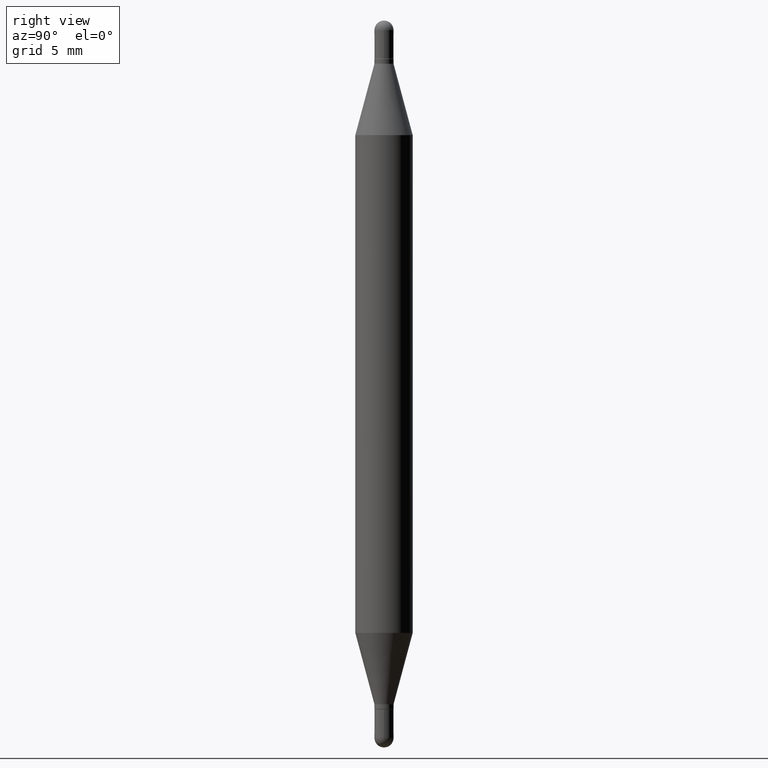
[diagram: clean part render]
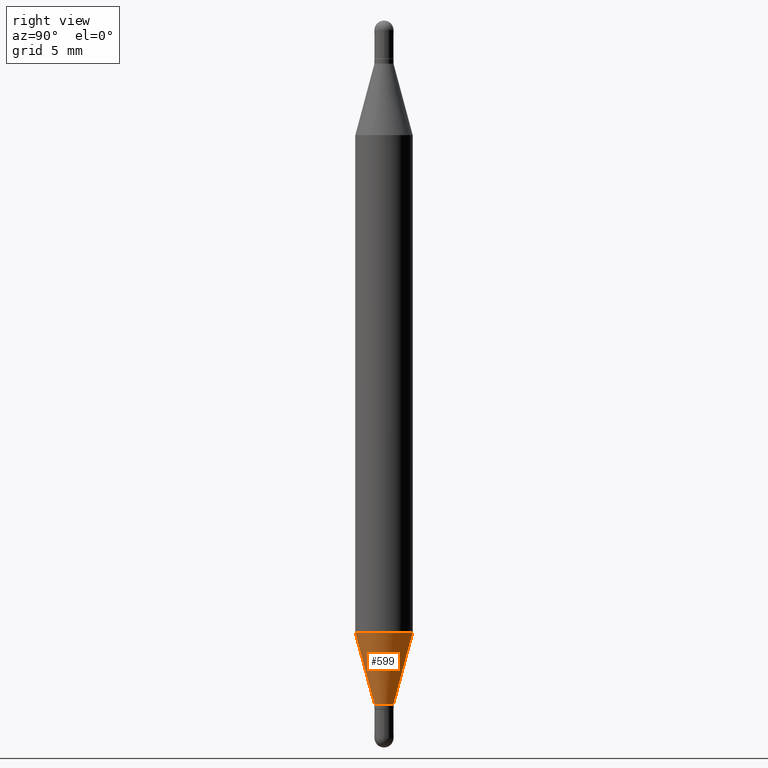
[diagram: same view with one face highlighted and labeled with its STEP entity id]
A machine part, right view. The second image highlights one B-rep face of the part: STEP entity #599.
In plain terms, the highlighted conical surface has half-angle 15 deg.
Its self-contained STEP definition (entity closure, byte-faithful):
#11 = FACE_OUTER_BOUND ( 'NONE', #234, .T. ) ;
#34 = CARTESIAN_POINT ( 'NONE',  ( -1.375643647503834691E-16, -0.01970000000000468945, -1.407099999999999795 ) ) ;
#193 = CARTESIAN_POINT ( 'NONE',  ( -1.375643647503834691E-16, -0.01970000000000468945, -1.407099999999999795 ) ) ;
#196 = CARTESIAN_POINT ( 'NONE',  ( 4.051124067684272586E-16, 0.05904999999999561294, -1.260243800722164353 ) ) ;
#234 = EDGE_LOOP ( 'NONE', ( #318, #975, #727, #417 ) ) ;
#245 = VECTOR ( 'NONE', #346, 39.37007874015748143 ) ;
#258 = CARTESIAN_POINT ( 'NONE',  ( 1.399769189447723916E-16, 0.01969999999999484663, -1.407099999999999795 ) ) ;
#267 = CIRCLE ( 'NONE', #898, 0.01969999999999976631 ) ;
#268 = CARTESIAN_POINT ( 'NONE',  ( 1.399769189447726381E-16, 0.01969999999999484663, -1.407099999999999795 ) ) ;
#318 = ORIENTED_EDGE ( 'NONE', *, *, #424, .T. ) ;
#338 = DIRECTION ( 'NONE',  ( -6.982962677686265922E-15, -1.000000000000000000, 0.000000000000000000 ) ) ;
#343 = LINE ( 'NONE', #193, #413 ) ;
#346 = DIRECTION ( 'NONE',  ( 1.839019923739600710E-15, 0.2588190451025250138, 0.9659258262890670910 ) ) ;
#413 = VECTOR ( 'NONE', #943, 39.37007874015748143 ) ;
#417 = ORIENTED_EDGE ( 'NONE', *, *, #513, .F. ) ;
#424 = EDGE_CURVE ( 'NONE', #646, #544, #267, .T. ) ;
#513 = EDGE_CURVE ( 'NONE', #646, #1064, #343, .T. ) ;
#514 = DIRECTION ( 'NONE',  ( -6.982962677686265922E-15, -1.000000000000000000, 4.626330217890367758E-15 ) ) ;
#522 = LINE ( 'NONE', #258, #245 ) ;
#544 = VERTEX_POINT ( 'NONE', #268 ) ;
#555 = EDGE_CURVE ( 'NONE', #1064, #1034, #557, .T. ) ;
#557 = CIRCLE ( 'NONE', #718, 0.05905000000000002608 ) ;
#599 = ADVANCED_FACE ( 'NONE', ( #11 ), #940, .T. ) ;
#646 = VERTEX_POINT ( 'NONE', #34 ) ;
#718 = AXIS2_PLACEMENT_3D ( 'NONE', #855, #777, #514 ) ;
#727 = ORIENTED_EDGE ( 'NONE', *, *, #555, .F. ) ;
#741 = DIRECTION ( 'NONE',  ( -2.440243022076049801E-29, 3.498964959120518163E-15, 1.000000000000000000 ) ) ;
#757 = CARTESIAN_POINT ( 'NONE',  ( 3.433665956363208741E-29, -4.923393593978480211E-15, -1.407099999999999795 ) ) ;
#777 = DIRECTION ( 'NONE',  ( -2.440243022076049801E-29, 3.498964959120518163E-15, 1.000000000000000000 ) ) ;
#801 = CARTESIAN_POINT ( 'NONE',  ( -4.123439461173434150E-16, -0.05905000000000443922, -1.260243800722163909 ) ) ;
#855 = CARTESIAN_POINT ( 'NONE',  ( 3.075301140826860747E-29, -4.409548898675713398E-15, -1.260243800722164131 ) ) ;
#898 = AXIS2_PLACEMENT_3D ( 'NONE', #757, #741, #1021 ) ;
#940 = CONICAL_SURFACE ( 'NONE', #1111, 0.01969999999999976631, 0.2617993877991502960 ) ;
#943 = DIRECTION ( 'NONE',  ( -1.807323732225330534E-15, -0.2588190451025182415, 0.9659258262890689783 ) ) ;
#944 = EDGE_CURVE ( 'NONE', #544, #1034, #522, .T. ) ;
#959 = CARTESIAN_POINT ( 'NONE',  ( 3.433665956363208741E-29, -4.923393593978480211E-15, -1.407099999999999795 ) ) ;
#975 = ORIENTED_EDGE ( 'NONE', *, *, #944, .T. ) ;
#1021 = DIRECTION ( 'NONE',  ( -6.982962677686265922E-15, -1.000000000000000000, 0.000000000000000000 ) ) ;
#1034 = VERTEX_POINT ( 'NONE', #196 ) ;
#1051 = DIRECTION ( 'NONE',  ( -2.440243022076049801E-29, 3.498964959120518163E-15, 1.000000000000000000 ) ) ;
#1064 = VERTEX_POINT ( 'NONE', #801 ) ;
#1111 = AXIS2_PLACEMENT_3D ( 'NONE', #959, #1051, #338 ) ;